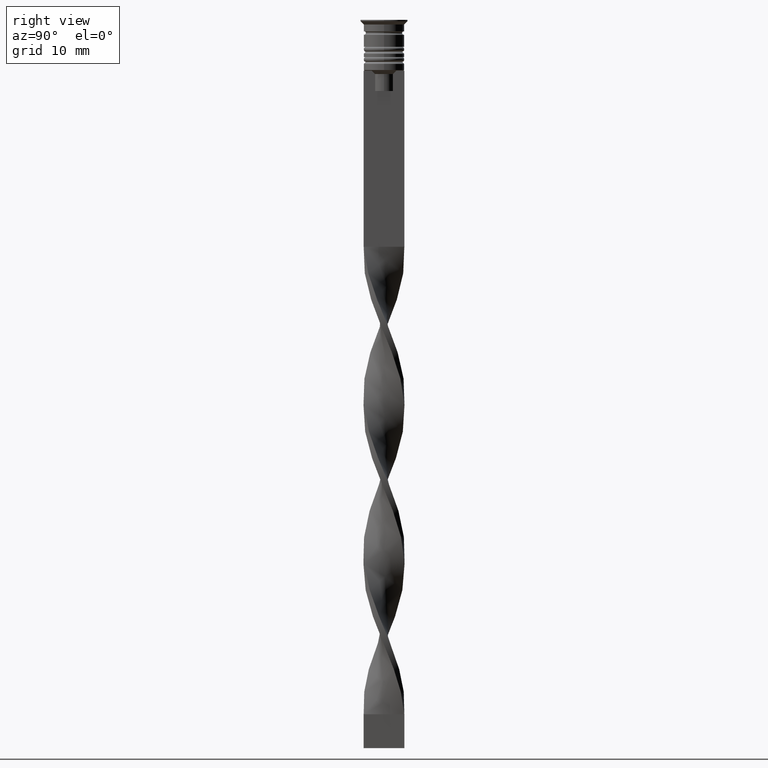
[diagram: clean part render]
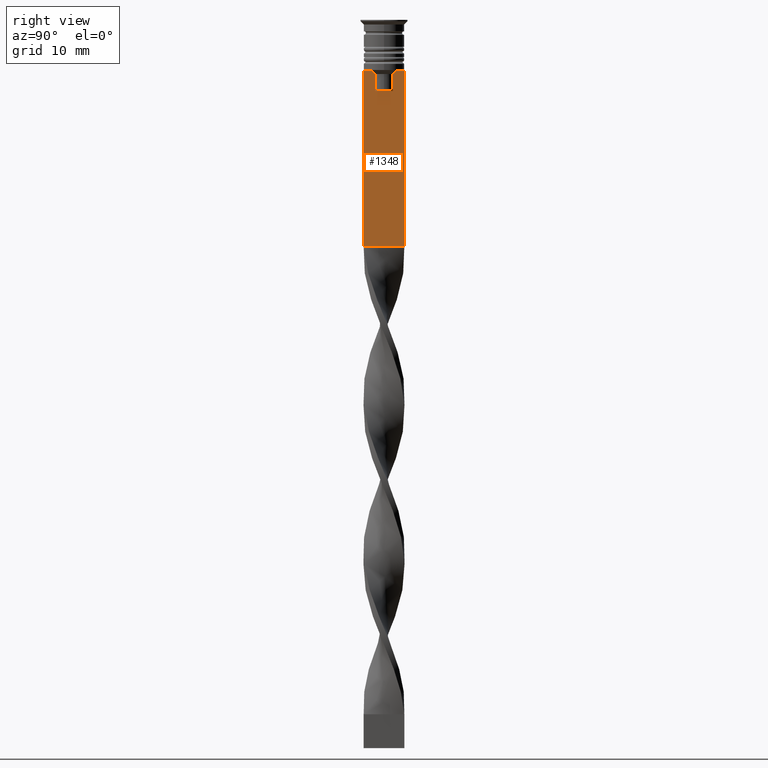
[diagram: same view with one face highlighted and labeled with its STEP entity id]
A machine part, right view. The second image highlights one B-rep face of the part: STEP entity #1348.
In plain terms, the highlighted planar face has unit normal (-1, 0, 0).
Its self-contained STEP definition (entity closure, byte-faithful):
#74 = VERTEX_POINT ( 'NONE', #251 ) ;
#109 = CARTESIAN_POINT ( 'NONE',  ( 0.4999999999999998890, 1.833030277982335754, -7.500000000000000000 ) ) ;
#129 = DIRECTION ( 'NONE',  ( 0.000000000000000000, -1.000000000000000000, 0.000000000000000000 ) ) ;
#210 = CARTESIAN_POINT ( 'NONE',  ( 0.4999999999999998890, -1.833030277982335754, -7.500000000000000000 ) ) ;
#217 = CARTESIAN_POINT ( 'NONE',  ( 0.4999999999999998890, 1.399999999999997691, -10.49999999999999822 ) ) ;
#242 = CARTESIAN_POINT ( 'NONE',  ( 0.4999999999999998890, 1.307669683062199439, 0.000000000000000000 ) ) ;
#251 = CARTESIAN_POINT ( 'NONE',  ( 0.4999999999999998890, -3.000000000000000000, -33.50000000000000000 ) ) ;
#309 = VERTEX_POINT ( 'NONE', #2768 ) ;
#461 = VECTOR ( 'NONE', #1007, 1000.000000000000000 ) ;
#491 = CARTESIAN_POINT ( 'NONE',  ( 0.4999999999999998890, -2.856571371417139904, -7.500000000000000000 ) ) ;
#516 = LINE ( 'NONE', #1576, #2756 ) ;
#557 = CARTESIAN_POINT ( 'NONE',  ( 0.4999999999999998890, 2.856571371417139904, -7.500000000000000000 ) ) ;
#579 = ORIENTED_EDGE ( 'NONE', *, *, #3389, .T. ) ;
#638 = LINE ( 'NONE', #1699, #3031 ) ;
#645 = ORIENTED_EDGE ( 'NONE', *, *, #2865, .T. ) ;
#718 = CARTESIAN_POINT ( 'NONE',  ( 0.4999999999999998890, -1.307669683062199439, 0.000000000000000000 ) ) ;
#764 = VERTEX_POINT ( 'NONE', #1484 ) ;
#801 = ORIENTED_EDGE ( 'NONE', *, *, #2047, .T. ) ;
#840 = LINE ( 'NONE', #3192, #2486 ) ;
#927 = CARTESIAN_POINT ( 'NONE',  ( 0.4999999999999998890, 1.307669683062199439, -8.000000000000000000 ) ) ;
#941 = DIRECTION ( 'NONE',  ( 0.000000000000000000, 0.000000000000000000, 1.000000000000000000 ) ) ;
#951 = CARTESIAN_POINT ( 'NONE',  ( 0.4999999999999998890, -1.307669683062199439, -8.000000000000000000 ) ) ;
#974 = PLANE ( 'NONE',  #3358 ) ;
#983 = LINE ( 'NONE', #718, #1246 ) ;
#1007 = DIRECTION ( 'NONE',  ( 0.000000000000000000, 0.000000000000000000, -1.000000000000000000 ) ) ;
#1013 = VECTOR ( 'NONE', #1873, 1000.000000000000000 ) ;
#1018 = VERTEX_POINT ( 'NONE', #1834 ) ;
#1075 = VECTOR ( 'NONE', #129, 1000.000000000000000 ) ;
#1108 = LINE ( 'NONE', #1395, #1650 ) ;
#1162 = DIRECTION ( 'NONE',  ( 0.000000000000000000, -1.000000000000000000, 0.000000000000000000 ) ) ;
#1189 = LINE ( 'NONE', #2520, #1075 ) ;
#1191 = VECTOR ( 'NONE', #1280, 1000.000000000000000 ) ;
#1197 = VERTEX_POINT ( 'NONE', #1316 ) ;
#1223 = CARTESIAN_POINT ( 'NONE',  ( 0.4999999999999998890, -3.000000000000000000, -1.417237469701779329 ) ) ;
#1246 = VECTOR ( 'NONE', #2058, 1000.000000000000000 ) ;
#1280 = DIRECTION ( 'NONE',  ( 0.000000000000000000, -1.000000000000000000, 0.000000000000000000 ) ) ;
#1288 = DIRECTION ( 'NONE',  ( 0.000000000000000000, 1.000000000000000000, 0.000000000000000000 ) ) ;
#1316 = CARTESIAN_POINT ( 'NONE',  ( 0.4999999999999998890, 3.000000000000000000, -7.500000000000000000 ) ) ;
#1317 = DIRECTION ( 'NONE',  ( 0.000000000000000000, 0.000000000000000000, -1.000000000000000000 ) ) ;
#1336 = B_SPLINE_CURVE_WITH_KNOTS ( 'NONE', 3,
 ( #951, #2566, #3119, #210 ),
 .UNSPECIFIED., .F., .F.,
 ( 4, 4 ),
 ( 0.007225659348748082224, 0.007950554640278054835 ),
 .UNSPECIFIED. ) ;
#1348 = ADVANCED_FACE ( 'NONE', ( #2063 ), #974, .F. ) ;
#1377 = B_SPLINE_CURVE_WITH_KNOTS ( 'NONE', 3,
 ( #109, #2237, #2183, #927 ),
 .UNSPECIFIED., .F., .F.,
 ( 4, 4 ),
 ( 0.003278537493109848298, 0.004003794023484941178 ),
 .UNSPECIFIED. ) ;
#1383 = CARTESIAN_POINT ( 'NONE',  ( 0.4999999999999998890, 3.000000000000000000, -33.50000000000000000 ) ) ;
#1394 = CARTESIAN_POINT ( 'NONE',  ( 0.4999999999999998890, -1.833030277982335754, -7.500000000000000000 ) ) ;
#1395 = CARTESIAN_POINT ( 'NONE',  ( 0.4999999999999998890, -3.000000000000000000, -7.500000000000000000 ) ) ;
#1484 = CARTESIAN_POINT ( 'NONE',  ( 0.4999999999999998890, -1.307669683062199439, -10.49999999999999822 ) ) ;
#1487 = EDGE_CURVE ( 'NONE', #1197, #2157, #2676, .T. ) ;
#1491 = LINE ( 'NONE', #1223, #2080 ) ;
#1556 = VERTEX_POINT ( 'NONE', #491 ) ;
#1563 = ORIENTED_EDGE ( 'NONE', *, *, #2923, .T. ) ;
#1576 = CARTESIAN_POINT ( 'NONE',  ( 0.4999999999999998890, 3.000000000000000000, -1.417237469701779329 ) ) ;
#1615 = ORIENTED_EDGE ( 'NONE', *, *, #2309, .F. ) ;
#1625 = CARTESIAN_POINT ( 'NONE',  ( 0.4999999999999998890, 1.833030277982335754, -7.500000000000000000 ) ) ;
#1650 = VECTOR ( 'NONE', #1162, 1000.000000000000000 ) ;
#1699 = CARTESIAN_POINT ( 'NONE',  ( 0.4999999999999998890, -3.000000000000000000, -7.500000000000000000 ) ) ;
#1731 = DIRECTION ( 'NONE',  ( 0.000000000000000000, -1.000000000000000000, 0.000000000000000000 ) ) ;
#1827 = CARTESIAN_POINT ( 'NONE',  ( 0.4999999999999998890, 1.307669683062199439, -8.000000000000000000 ) ) ;
#1834 = CARTESIAN_POINT ( 'NONE',  ( 0.4999999999999998890, -3.000000000000000000, -7.500000000000000000 ) ) ;
#1842 = ORIENTED_EDGE ( 'NONE', *, *, #3007, .T. ) ;
#1859 = ORIENTED_EDGE ( 'NONE', *, *, #1961, .T. ) ;
#1873 = DIRECTION ( 'NONE',  ( 0.000000000000000000, -1.000000000000000000, 0.000000000000000000 ) ) ;
#1875 = VERTEX_POINT ( 'NONE', #1827 ) ;
#1892 = CARTESIAN_POINT ( 'NONE',  ( 0.4999999999999998890, -3.000000000000000000, -7.500000000000000000 ) ) ;
#1897 = ORIENTED_EDGE ( 'NONE', *, *, #2661, .T. ) ;
#1961 = EDGE_CURVE ( 'NONE', #1875, #309, #2430, .T. ) ;
#1986 = VERTEX_POINT ( 'NONE', #1383 ) ;
#1992 = EDGE_LOOP ( 'NONE', ( #3270, #2979, #1859, #801, #1563, #645, #579, #3169, #1842, #1897, #1615, #2582 ) ) ;
#1993 = CARTESIAN_POINT ( 'NONE',  ( 0.4999999999999998890, -1.307669683062199439, -8.000000000000000000 ) ) ;
#2047 = EDGE_CURVE ( 'NONE', #309, #764, #2609, .T. ) ;
#2058 = DIRECTION ( 'NONE',  ( -0.000000000000000000, -0.000000000000000000, 1.000000000000000000 ) ) ;
#2063 = FACE_OUTER_BOUND ( 'NONE', #1992, .T. ) ;
#2080 = VECTOR ( 'NONE', #2292, 1000.000000000000000 ) ;
#2157 = VERTEX_POINT ( 'NONE', #557 ) ;
#2183 = CARTESIAN_POINT ( 'NONE',  ( 0.4999999999999998890, 1.484355510416485835, -7.834966642958598015 ) ) ;
#2185 = VERTEX_POINT ( 'NONE', #1394 ) ;
#2237 = CARTESIAN_POINT ( 'NONE',  ( 0.4999999999999998890, 1.659046061654642967, -7.667851756010362507 ) ) ;
#2292 = DIRECTION ( 'NONE',  ( 0.000000000000000000, 0.000000000000000000, -1.000000000000000000 ) ) ;
#2309 = EDGE_CURVE ( 'NONE', #1197, #1986, #516, .T. ) ;
#2430 = LINE ( 'NONE', #242, #461 ) ;
#2452 = EDGE_CURVE ( 'NONE', #1556, #1018, #1189, .T. ) ;
#2482 = EDGE_CURVE ( 'NONE', #2157, #3058, #638, .T. ) ;
#2486 = VECTOR ( 'NONE', #1288, 1000.000000000000000 ) ;
#2493 = VERTEX_POINT ( 'NONE', #1993 ) ;
#2520 = CARTESIAN_POINT ( 'NONE',  ( 0.4999999999999998890, -3.000000000000000000, -7.500000000000000000 ) ) ;
#2566 = CARTESIAN_POINT ( 'NONE',  ( 0.4999999999999998890, -1.484307477388859153, -7.835011508197190722 ) ) ;
#2582 = ORIENTED_EDGE ( 'NONE', *, *, #1487, .T. ) ;
#2609 = LINE ( 'NONE', #217, #1191 ) ;
#2661 = EDGE_CURVE ( 'NONE', #74, #1986, #840, .T. ) ;
#2676 = LINE ( 'NONE', #1892, #1013 ) ;
#2756 = VECTOR ( 'NONE', #1317, 1000.000000000000000 ) ;
#2768 = CARTESIAN_POINT ( 'NONE',  ( 0.4999999999999998890, 1.307669683062199439, -10.49999999999999822 ) ) ;
#2778 = EDGE_CURVE ( 'NONE', #3058, #1875, #1377, .T. ) ;
#2865 = EDGE_CURVE ( 'NONE', #2493, #2185, #1336, .T. ) ;
#2923 = EDGE_CURVE ( 'NONE', #764, #2493, #983, .T. ) ;
#2979 = ORIENTED_EDGE ( 'NONE', *, *, #2778, .T. ) ;
#3007 = EDGE_CURVE ( 'NONE', #1018, #74, #1491, .T. ) ;
#3031 = VECTOR ( 'NONE', #1731, 1000.000000000000000 ) ;
#3058 = VERTEX_POINT ( 'NONE', #1625 ) ;
#3119 = CARTESIAN_POINT ( 'NONE',  ( 0.4999999999999998890, -1.659011726860414093, -7.667884880598472286 ) ) ;
#3127 = DIRECTION ( 'NONE',  ( -1.000000000000000000, 0.000000000000000000, 0.000000000000000000 ) ) ;
#3169 = ORIENTED_EDGE ( 'NONE', *, *, #2452, .T. ) ;
#3192 = CARTESIAN_POINT ( 'NONE',  ( 0.4999999999999998890, -3.000000000000000000, -33.50000000000000000 ) ) ;
#3270 = ORIENTED_EDGE ( 'NONE', *, *, #2482, .T. ) ;
#3332 = CARTESIAN_POINT ( 'NONE',  ( 0.4999999999999998890, -3.000000000000000000, -1.417237469701779329 ) ) ;
#3358 = AXIS2_PLACEMENT_3D ( 'NONE', #3332, #3127, #941 ) ;
#3389 = EDGE_CURVE ( 'NONE', #2185, #1556, #1108, .T. ) ;